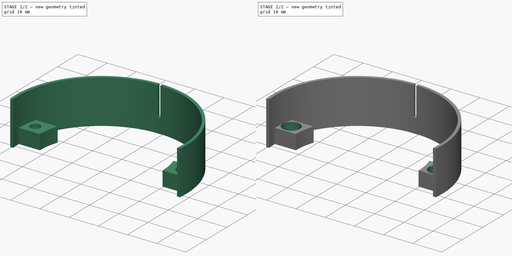
[diagram: build sequence overview — one tinted view per stage of 2, left to right]
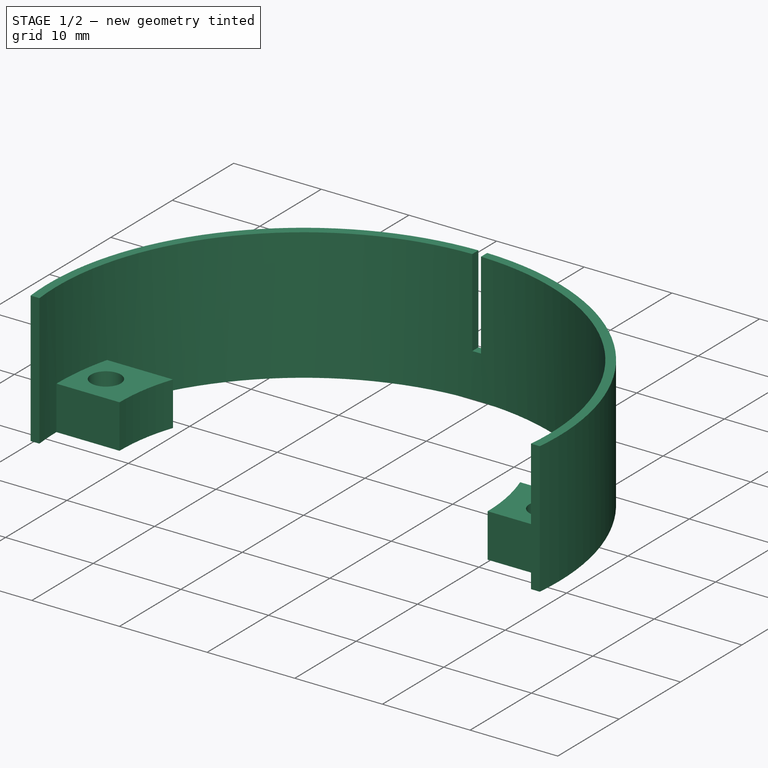
[diagram: stage 1 of 2 — iso view after this stage's code; geometry added in this stage tinted green]
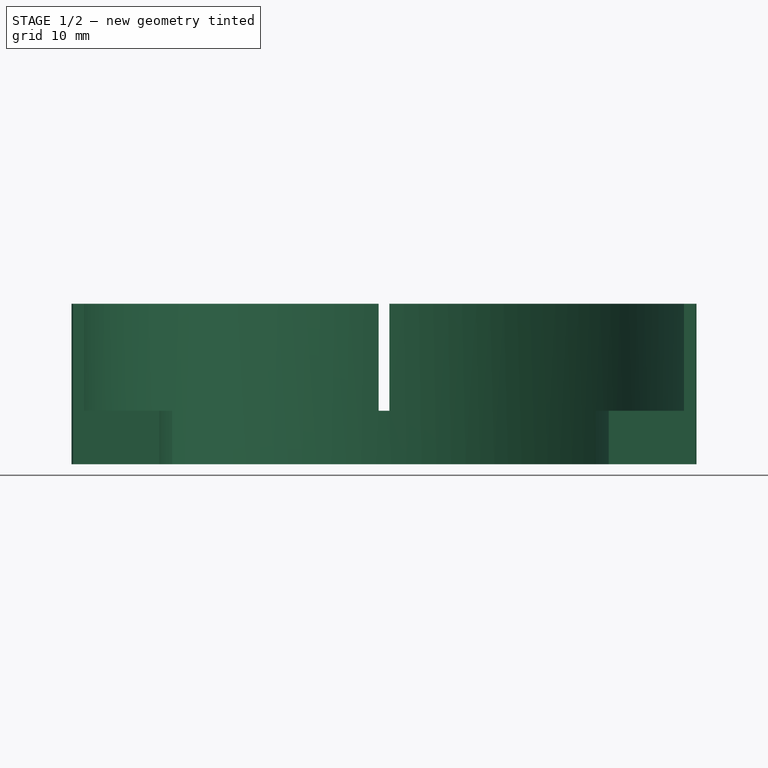
[diagram: stage 1 of 2 — front view after this stage's code; geometry added in this stage tinted green]
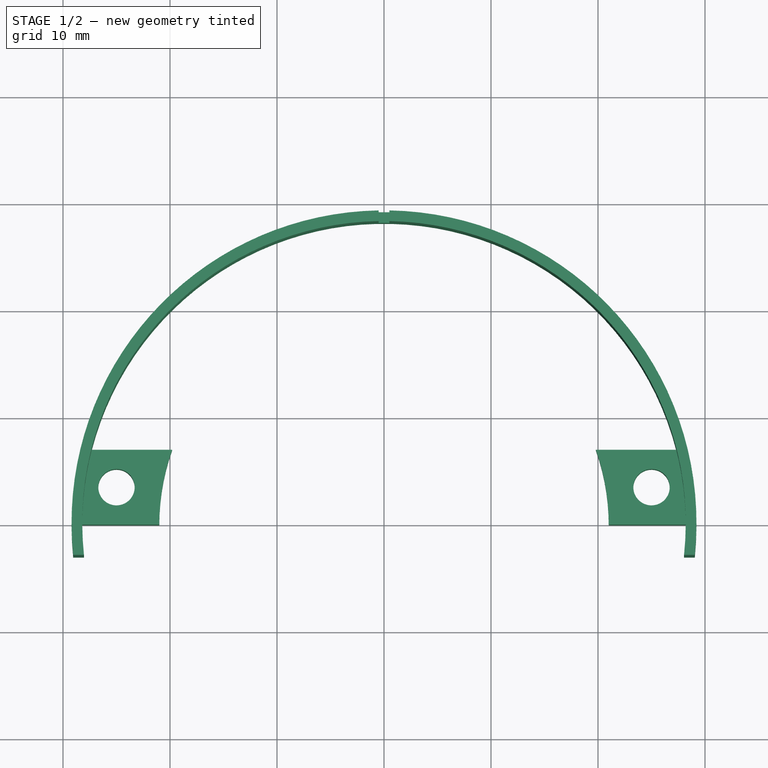
[diagram: stage 1 of 2 — top view after this stage's code; geometry added in this stage tinted green]
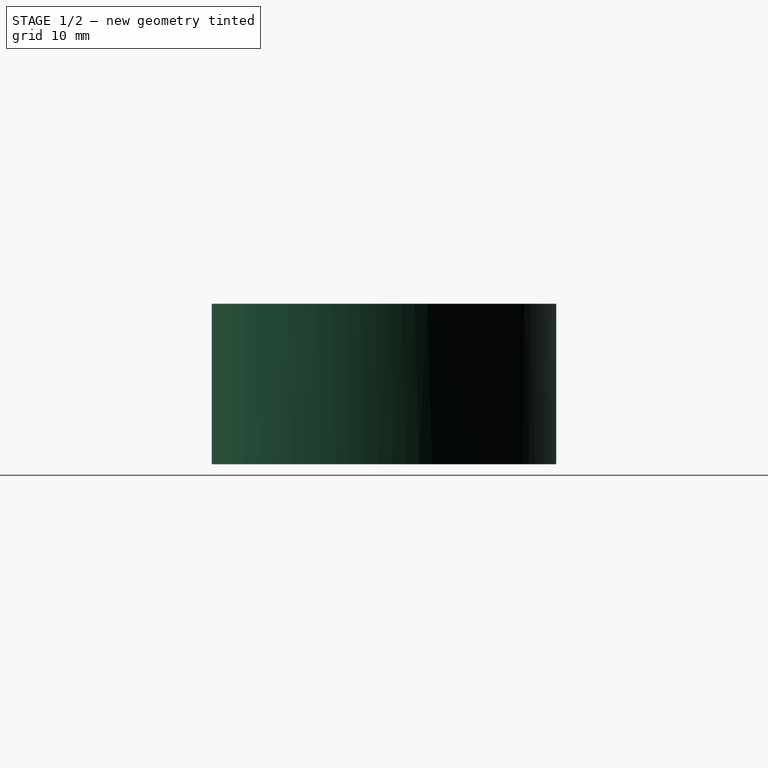
[diagram: stage 1 of 2 — right view after this stage's code; geometry added in this stage tinted green]
FCSTD DOCUMENT  (FreeCAD 0.19R24276 (Git))
Label: Art23Optodisk
License: All rights reserved
LicenseURL: http://en.wikipedia.org/wiki/All_rights_reserved
objects: Sketcher::SketchObject×3, PartDesign::Pad×2, PartDesign::Line×2, Spreadsheet::Sheet×1, PartDesign::Pocket×1, PartDesign::CoordinateSystem×1, PartDesign::Body×1
note: 13 computed .brp shape members not serialized (recipe doc carries the construction recipe); baked Part::Feature solids carry a one-line shape summary decoded from their .brp

FEATURE [Spreadsheet::Sheet] Spreadsheet
  cells = A2=M3BoltBodyRadius; B2(M3BoltBodyRadius)=1.7; A3=M3BoltHeadRadius; B3(M3BoltHeadRadius)=2.95; A4=M3NutCircumradius; B4(M3NutCircumradius)=3.35; A5=M3NutThickness; B5(M3NutThickness)=3; A6=Bearing655ZZBodyRadius; B6(Bearing655ZZBodyRadius)=8.199999999999999; A7=MagnetRadius; B7(MagnetRadius)=4.2; A8=MagnetThickness; B8(MagnetThickness)=1.1; A9=M2BoltBodyRadius; B9(M2BoltBodyRadius)=1.2; A10=M2BoltHeadRadius; B10(M2BoltHeadRadius)=2.1
FEATURE [Sketcher::SketchObject] Sketch
  FullyConstrained = true
  MapMode = 5
  Support = -> [XY_Plane]
  expr: Constraints[39] = Spreadsheet.M3BoltBodyRadius
  sketch-geometry (14):
    g0: ArcOfCircle CenterX=0 CenterY=0 CenterZ=0 NormalX=0 NormalY=0 NormalZ=1 AngleXU=0 Radius=29.2 StartAngle=6.18026 EndAngle=9.5277
    g1: ArcOfCircle CenterX=0 CenterY=0 CenterZ=0 NormalX=0 NormalY=0 NormalZ=1 AngleXU=0 Radius=21 StartAngle=2.80176 EndAngle=3.14159
    g2: ArcOfCircle CenterX=0 CenterY=0 CenterZ=0 NormalX=0 NormalY=0 NormalZ=1 AngleXU=0 Radius=28.2 StartAngle=3.14159 EndAngle=3.24818
    g3: ArcOfCircle CenterX=0 CenterY=0 CenterZ=0 NormalX=0 NormalY=0 NormalZ=1 AngleXU=0 Radius=28.2 StartAngle=0.250849 EndAngle=2.89074
    g4: ArcOfCircle CenterX=0 CenterY=0 CenterZ=0 NormalX=0 NormalY=0 NormalZ=1 AngleXU=0 Radius=28.2 StartAngle=6.1766 EndAngle=6.28319
    g5: ArcOfCircle CenterX=0 CenterY=0 CenterZ=0 NormalX=0 NormalY=0 NormalZ=1 AngleXU=0 Radius=21 StartAngle=0 EndAngle=0.339837
    g6: LineSegment StartX=-19.799 StartY=7 StartZ=0 EndX=-27.3174 EndY=7 EndZ=0
    g7: LineSegment StartX=-28.2 StartY=0 StartZ=0 EndX=-21 EndY=0 EndZ=0
    g8: LineSegment StartX=19.799 StartY=7 StartZ=0 EndX=27.3174 EndY=7 EndZ=0
    g9: LineSegment StartX=21 StartY=0 StartZ=0 EndX=28.2 EndY=0 EndZ=0
    g10: LineSegment StartX=-28.04 StartY=-3 StartZ=0 EndX=-29.0455 EndY=-3 EndZ=0
    g11: LineSegment StartX=28.04 StartY=-3 StartZ=0 EndX=29.0455 EndY=-3 EndZ=0
    g12: Circle CenterX=-25 CenterY=3.5 CenterZ=0 NormalX=0 NormalY=0 NormalZ=1 AngleXU=0 Radius=1.7
    g13: Circle CenterX=25 CenterY=3.5 CenterZ=0 NormalX=0 NormalY=0 NormalZ=1 AngleXU=0 Radius=1.7
  constraints (40):
    c: Coincident(g0,g-1)
    c: Coincident(g1,g0)
    c: PointOnObject(g1,g-1)
    c: Coincident(g2,g0)
    c: PointOnObject(g2,g-1)
    c: Coincident(g3,g0)
    c: Coincident(g4,g0)
    c: PointOnObject(g4,g-1)
    c: Coincident(g5,g0)
    c: PointOnObject(g5,g-1)
    c: Coincident(g6,g1)
    c: Horizontal(g6)
    c: Coincident(g3,g6)
    c: Coincident(g7,g2)
    c: Coincident(g7,g1)
    c: DistanceY(g1,g1) = 7
    c: Coincident(g8,g5)
    c: Coincident(g8,g3)
    c: Coincident(g9,g5)
    c: Coincident(g9,g4)
    c: Horizontal(g8)
    c: Symmetric(g5,g1,g-2)
    c: Equal(g3,g2)
    c: Equal(g2,g4)
    c: Radius(g1) = 21
    c: Radius(g3) = 28.2
    c: Radius(g0) = 29.2
    c: Coincident(g10,g2)
    c: Coincident(g10,g0)
    c: Horizontal(g10)
    c: Coincident(g11,g4)
    c: Coincident(g11,g0)
    c: Horizontal(g11)
    c: DistanceY(g2,g0) = 3
    c: DistanceY(g4,g0) = 3
    c: DistanceX(g12,g0) = 25
    c: DistanceY(g12) = 3.5
    c: Equal(g12,g13)
    c: Symmetric(g13,g12,g-2)
    c: Radius(g13) = 1.7
FEATURE [PartDesign::Pad] Pad
  Direction = (1,1,1)
  Length = 5
  Length2 = 100
  Profile = -> Sketch
  Refine = true
  Type = 0
FEATURE [Sketcher::SketchObject] Sketch001
  ExternalGeometry = -> [Pad]
  FullyConstrained = true
  MapMode = 5
  Placement = pos=(0,0,5) rot=(0,0,1;0rad)
  Support = -> [Pad]
  sketch-geometry (8):
    g0: ArcOfCircle CenterX=0 CenterY=0 CenterZ=0 NormalX=0 NormalY=0 NormalZ=1 AngleXU=0 Radius=28.2 StartAngle=1.58853 EndAngle=3.24818
    g1: ArcOfCircle CenterX=0 CenterY=0 CenterZ=0 NormalX=0 NormalY=0 NormalZ=1 AngleXU=0 Radius=29.2 StartAngle=1.58792 EndAngle=3.24451
    g2: ArcOfCircle CenterX=0 CenterY=0 CenterZ=0 NormalX=0 NormalY=0 NormalZ=1 AngleXU=0 Radius=28.2 StartAngle=6.1766 EndAngle=7.83625
    g3: ArcOfCircle CenterX=0 CenterY=0 CenterZ=0 NormalX=0 NormalY=0 NormalZ=1 AngleXU=0 Radius=29.2 StartAngle=6.18026 EndAngle=7.83686
    g4: LineSegment StartX=-29.0455 StartY=-3 StartZ=0 EndX=-28.04 EndY=-3 EndZ=0
    g5: LineSegment StartX=28.04 StartY=-3 StartZ=0 EndX=29.0455 EndY=-3 EndZ=0
    g6: LineSegment StartX=-0.5 StartY=29.1957 StartZ=0 EndX=-0.5 EndY=28.1956 EndZ=0
    g7: LineSegment StartX=0.5 StartY=28.1956 StartZ=0 EndX=0.5 EndY=29.1957 EndZ=0
  constraints (20):
    c: Coincident(g0,g-1)
    c: Coincident(g0,g-5)
    c: Coincident(g1,g0)
    c: Coincident(g1,g-3)
    c: Coincident(g2,g0)
    c: Coincident(g2,g-4)
    c: Coincident(g3,g0)
    c: Coincident(g3,g-3)
    c: Coincident(g4,g1)
    c: Coincident(g4,g0)
    c: Coincident(g5,g2)
    c: Coincident(g5,g3)
    c: Coincident(g6,g1)
    c: Coincident(g6,g0)
    c: Coincident(g7,g2)
    c: Coincident(g7,g3)
    c: Vertical(g7)
    c: Vertical(g6)
    c: DistanceX(g1,g3) = 1
    c: DistanceX(g0,g2) = 0.5
FEATURE [PartDesign::Pad] Pad001
  BaseFeature = -> Pad
  Direction = (1,1,1)
  Length = 10
  Length2 = 100
  Profile = -> Sketch001
  Refine = true
  Type = 0
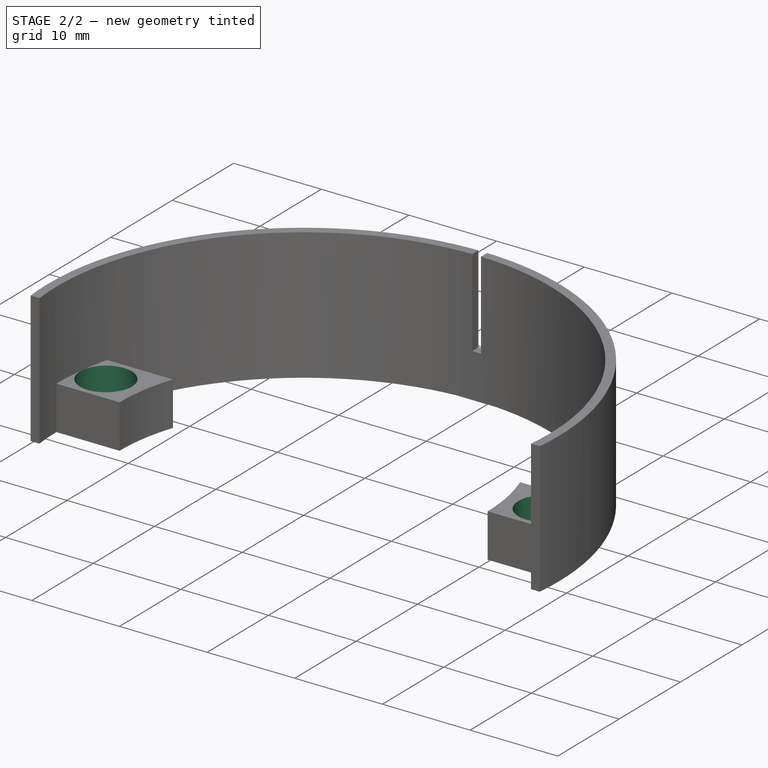
[diagram: stage 2 of 2 — iso view after this stage's code; geometry added in this stage tinted green]
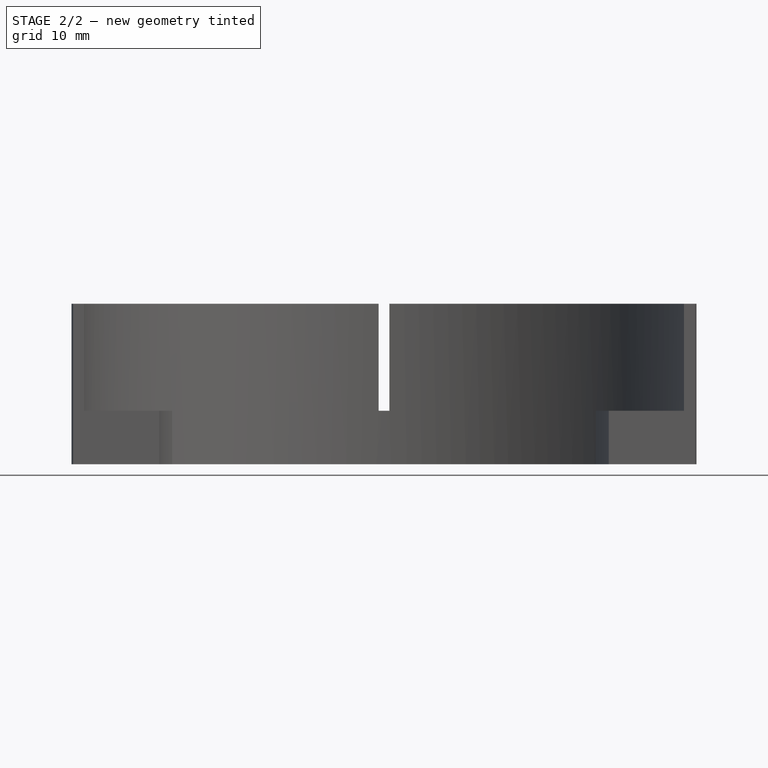
[diagram: stage 2 of 2 — front view after this stage's code; geometry added in this stage tinted green]
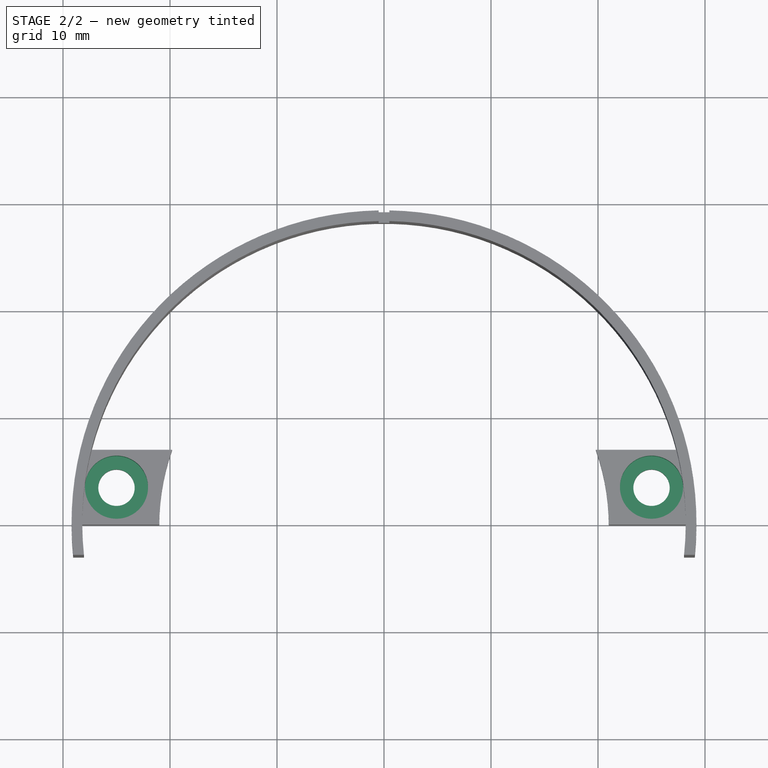
[diagram: stage 2 of 2 — top view after this stage's code; geometry added in this stage tinted green]
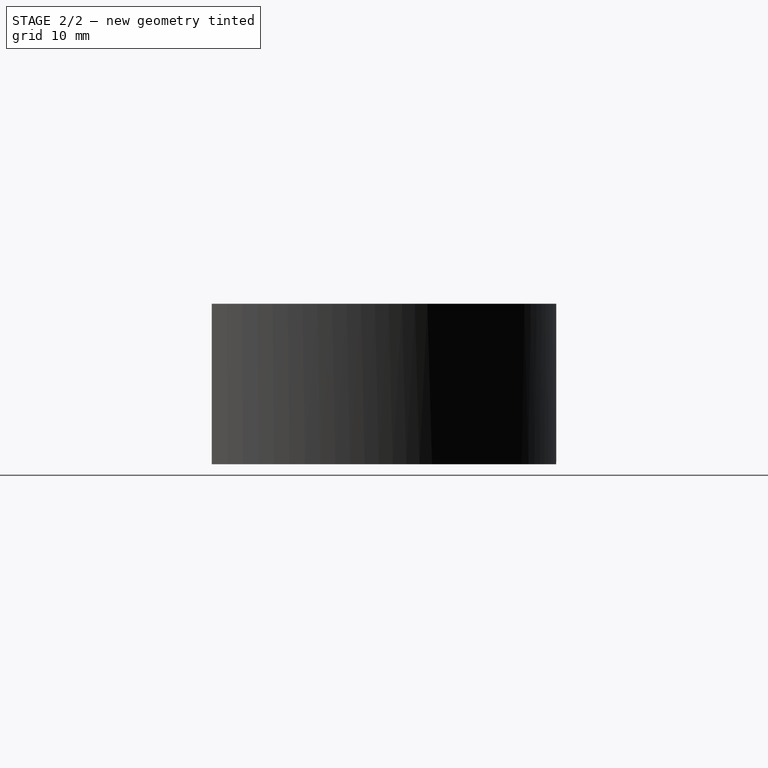
[diagram: stage 2 of 2 — right view after this stage's code; geometry added in this stage tinted green]
FEATURE [Sketcher::SketchObject] Sketch002
  ExternalGeometry = -> [Pad001]
  FullyConstrained = true
  MapMode = 5
  Placement = pos=(0,0,5) rot=(0,0,1;0rad)
  Support = -> [Pad001]
  expr: Constraints[2] = Spreadsheet.M3BoltHeadRadius
  sketch-geometry (2):
    g0: Circle CenterX=-25 CenterY=3.5 CenterZ=0 NormalX=0 NormalY=0 NormalZ=1 AngleXU=0 Radius=2.95
    g1: Circle CenterX=25 CenterY=3.5 CenterZ=0 NormalX=0 NormalY=0 NormalZ=1 AngleXU=0 Radius=2.95
  constraints (4):
    c: Coincident(g0,g-4)
    c: Coincident(g1,g-3)
    c: Radius(g0) = 2.95
    c: Equal(g1,g0)
FEATURE [PartDesign::Pocket] Pocket
  BaseFeature = -> Pad001
  Length = 3
  Length2 = 100
  Profile = -> Sketch002
  Refine = true
  Type = 0
FEATURE [PartDesign::CoordinateSystem] LCS_Art23Optodisk
  AttacherType = Attacher::AttachEngine3D
  MapMode = 45
  Placement = pos=(1.06e-14,3.5,0) rot=(0,0,1;1.5708rad)
  Support = -> [Pocket]
FEATURE [PartDesign::Line] HoleAxis_1
  AttacherType = Attacher::AttachEngineLine
  Length = 4.79083
  MapMode = 19
  Placement = pos=(-25,3.5,2) rot=(-1,0,0;3.14159rad)
  ResizeMode = 1
  Support = -> [Pocket]
FEATURE [PartDesign::Line] HoleAxis_2
  AttacherType = Attacher::AttachEngineLine
  Length = 4.79083
  MapMode = 19
  Placement = pos=(25,3.5,2) rot=(-1,0,0;3.14159rad)
  ResizeMode = 1
  Support = -> [Pocket]
FEATURE [PartDesign::Body] Body  label="Art23Optodisk"
  Group = -> [Sketch,Pad,Sketch001,Pad001,Sketch002,Pocket,LCS_Art23Optodisk,HoleAxis_1,HoleAxis_2]
  Origin = -> Origin
  Tip = -> Pocket
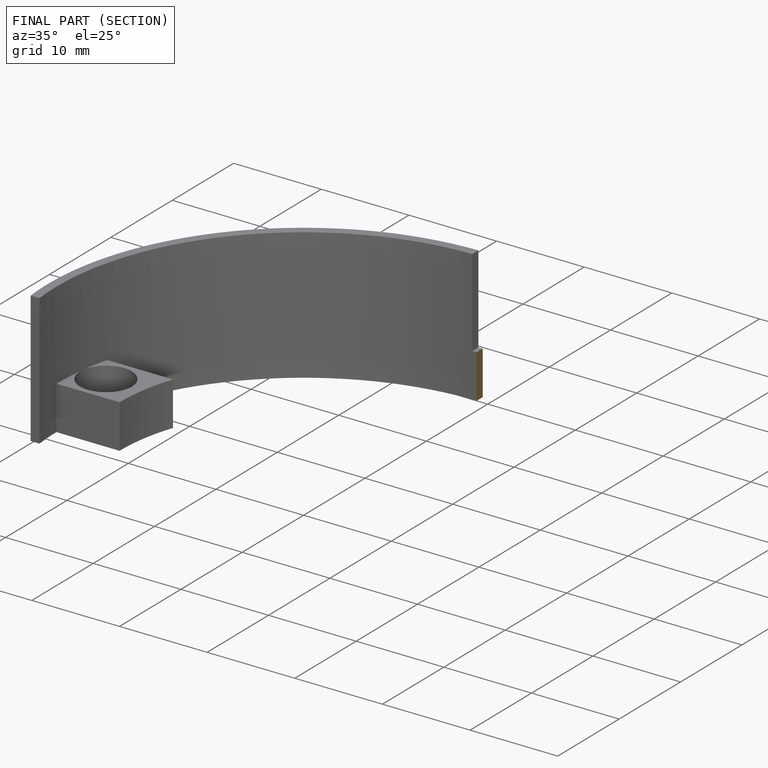
[diagram: finished part — half-section view (interior)]
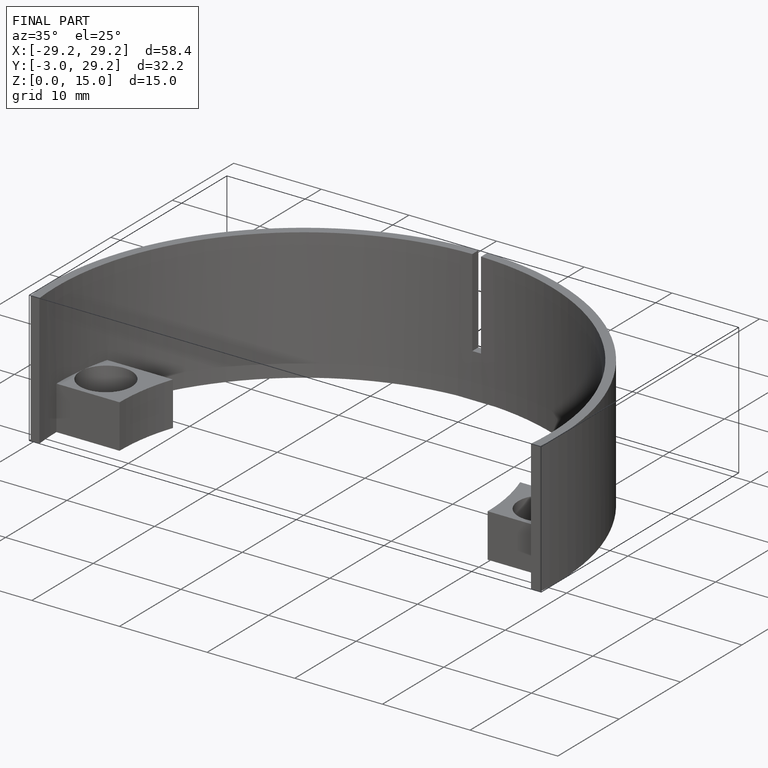
[diagram: finished part — iso view with bounding-box wireframe]
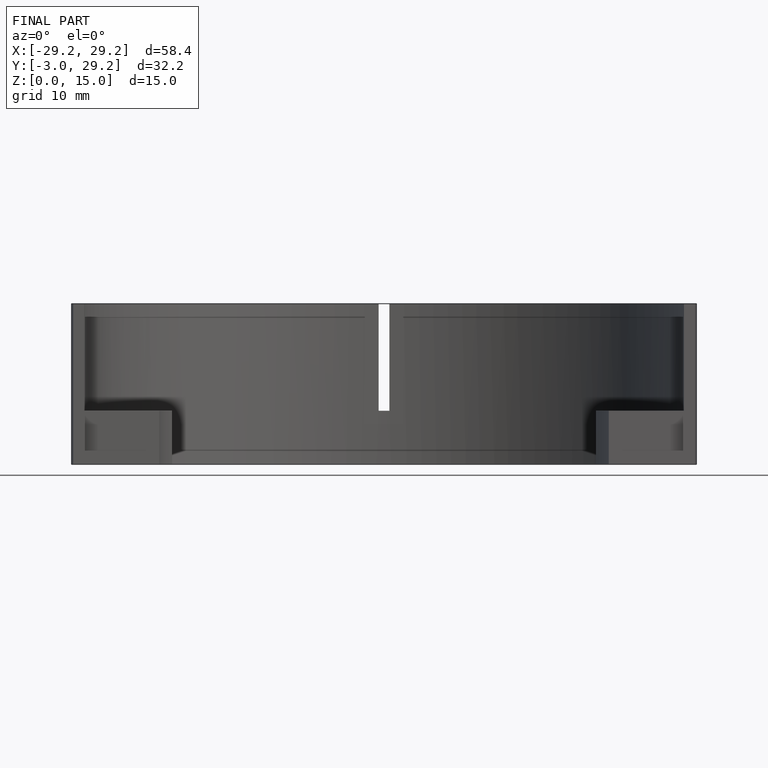
[diagram: finished part — front view with bounding-box wireframe]
